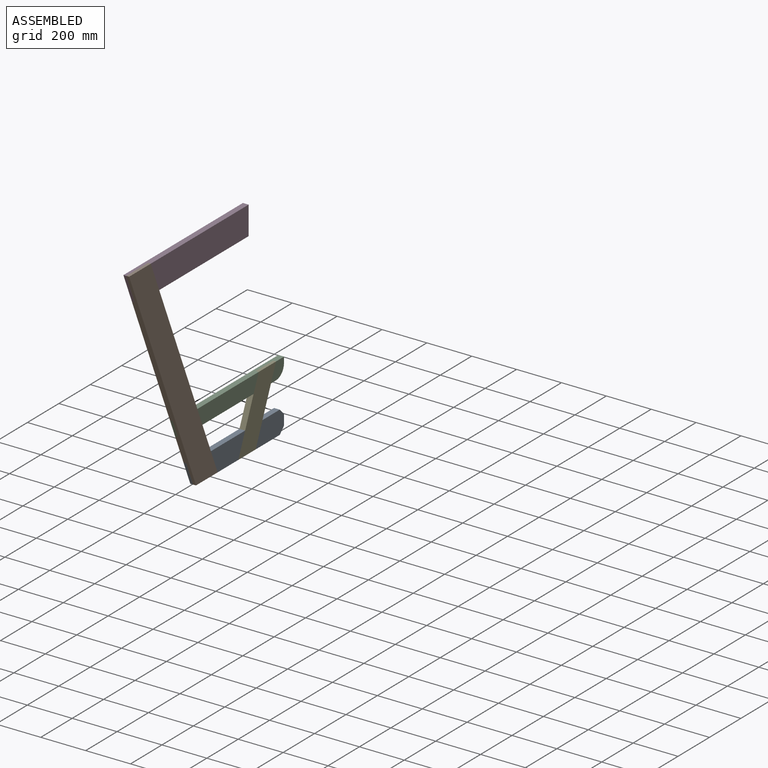
[diagram: assembled view]
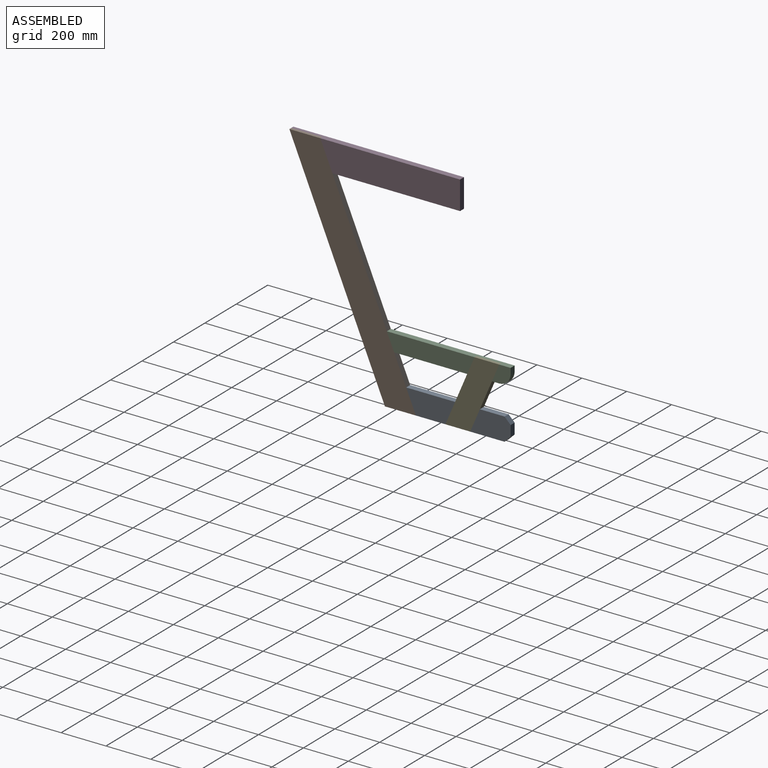
[diagram: assembled view, second angle]
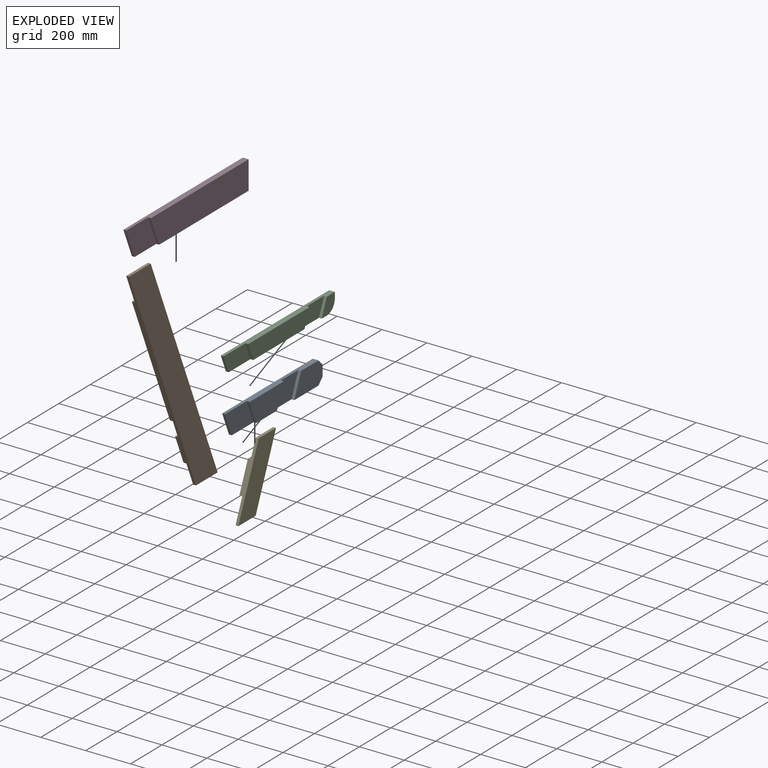
[diagram: exploded view]
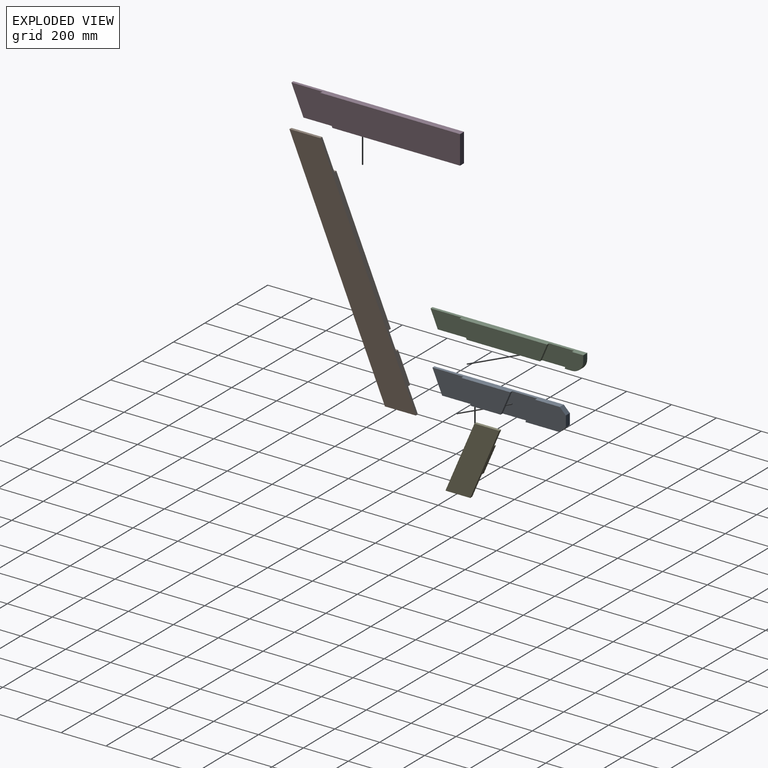
[diagram: exploded view, second angle]
ASSEMBLY  parts=5 mates=4
PART A: 14 faces, bbox 25.4x603.4x101.6 mm
  f0: plane 153.5x101.6mm, normal (1,0,0), area 11214mm2, adj f1,f3,f10,f12
  f1: plane 576.5x25.4mm, normal (0,0,1), area 11489mm2, adj f0,f2,f6,f7,f8,f9,f10,f11
  f2: plane 101.6x43.13mm, normal (0,-0.92,-0.39), area 1401.8mm2, adj f1,f3,f7,f8
  f3: plane 533.37x25.4mm, normal (0,0,-1), area 10393.6mm2, adj f0,f2,f4,f7,f8,f9,f10,f11
  f4: plane 26.94x26.94mm, normal (0,0.71,-0.71), area 967.7mm2, adj f3,f5,f8,f13
  f5: plane 47.72x25.4mm, normal (0,1,0), area 1212mm2, adj f4,f6,f8,f13
  f6: plane 26.94x26.94mm, normal (0,0.71,0.71), area 967.7mm2, adj f1,f5,f8,f13
  f7: plane 181.09x101.6mm, normal (1,0,0), area 14017.5mm2, adj f1,f2,f3,f9
  f8: plane 603.44x101.6mm, normal (-1,0,0), area 58392.5mm2, adj f1,f2,f3,f4,f5,f6
  f9: plane 101.6x43.13mm, normal (0,-0.92,-0.39), area 1401.8mm2, adj f1,f3,f7,f11
  f10: plane 101.6x43.13mm, normal (0,0.92,-0.39), area 1401.8mm2, adj f0,f1,f3,f11
  f11: plane 218.04x101.6mm, normal (1,0,0), area 17771.3mm2, adj f1,f3,f9,f10
  f12: plane 101.6x43.13mm, normal (0,-0.92,0.39), area 1401.8mm2, adj f0,f1,f3,f13
  f13: plane 180.18x101.6mm, normal (1,0,0), area 15389.6mm2, adj f1,f3,f4,f5,f6,f12
PART B: 14 faces, bbox 25.4x563.8x1003.3 mm
  f0: plane 170.31x76.2mm, normal (-1,0,0), area 10513.1mm2, adj f2,f4,f8,f11
  f1: plane 191.88x127mm, normal (-1,0,0), area 17521.9mm2, adj f2,f4,f5,f12
  f2: plane 1003.3x425.88mm, normal (0,-0.92,-0.39), area 23479.4mm2, adj f0,f1,f3,f5,f6,f7,f8,f9
  f3: plane 137.97x12.7mm, normal (0,0,-1), area 1752.2mm2, adj f2,f4,f6,f7
  f4: plane 1003.3x425.88mm, normal (0,0.92,0.39), area 23479.4mm2, adj f0,f1,f3,f5,f6,f7,f8,f9
  f5: plane 137.97x12.7mm, normal (0,0,1), area 1752.2mm2, adj f1,f2,f4,f6
  f6: plane 1003.3x563.84mm, normal (1,0,0), area 138423.1mm2, adj f2,f3,f4,f5
  f7: plane 181.09x101.6mm, normal (-1,0,0), area 14017.5mm2, adj f2,f3,f4,f9
  f8: plane 137.97x12.7mm, normal (0,0,1), area 1752.2mm2, adj f0,f2,f4,f10
  f9: plane 137.97x12.7mm, normal (0,0,-1), area 1752.2mm2, adj f2,f4,f7,f10
  f10: plane 191.88x127mm, normal (-1,0,0), area 17521.9mm2, adj f2,f4,f8,f9
  f11: plane 137.97x12.7mm, normal (0,0,-1), area 1752.2mm2, adj f0,f2,f4,f13
  f12: plane 137.97x12.7mm, normal (0,0,1), area 1752.2mm2, adj f1,f2,f4,f13
  f13: plane 571.5x380.56mm, normal (-1,0,0), area 78848.6mm2, adj f2,f4,f11,f12
PART C: 13 faces, bbox 25.4x689.7x76.2 mm
  f0: plane 142.72x76.2mm, normal (1,0,0), area 8410.5mm2, adj f1,f3,f8,f11
  f1: plane 689.69x25.4mm, normal (0,0,1), area 14364.2mm2, adj f0,f2,f5,f6,f7,f8,f9,f10
  f2: plane 76.2x32.35mm, normal (0,-0.92,-0.39), area 1051.3mm2, adj f1,f3,f6,f7
  f3: plane 606.54x25.4mm, normal (0,0,-1), area 12252.3mm2, adj f0,f2,f4,f6,f7,f8,f9,f10
  f4: cylinder r=50.8mm len=50.8mm, axis (-1,0,0), area 2026.8mm2, adj f3,f5,f7,f12
  f5: plane 25.4x25.4mm, normal (0,1,0), area 645.2mm2, adj f1,f4,f7,f12
  f6: plane 170.31x76.2mm, normal (1,0,0), area 10513.1mm2, adj f1,f2,f3,f9
  f7: plane 689.69x76.2mm, normal (-1,0,0), area 50768.2mm2, adj f1,f2,f3,f4,f5
  f8: plane 76.2x32.35mm, normal (0,0.92,-0.39), area 1051.3mm2, adj f0,f1,f3,f10
  f9: plane 76.2x32.35mm, normal (0,-0.92,-0.39), area 1051.3mm2, adj f1,f3,f6,f10
  f10: plane 390.55x76.2mm, normal (1,0,0), area 27295mm2, adj f1,f3,f8,f9
  f11: plane 76.2x32.35mm, normal (0,-0.92,0.39), area 1051.3mm2, adj f0,f1,f3,f12
  f12: plane 83.15x76.2mm, normal (1,0,0), area 4549.5mm2, adj f1,f3,f4,f5,f11
PART D: 8 faces, bbox 25.4x760.7x127 mm
  f0: plane 191.88x127mm, normal (1,0,0), area 17521.9mm2, adj f1,f3,f4,f6
  f1: plane 706.81x25.4mm, normal (0,0,-1), area 16200.8mm2, adj f0,f2,f4,f5,f6,f7
  f2: plane 127x25.4mm, normal (0,1,0), area 3225.8mm2, adj f1,f3,f5,f7
  f3: plane 760.72x25.4mm, normal (0,0,1), area 17570mm2, adj f0,f2,f4,f5,f6,f7
  f4: plane 127x53.91mm, normal (0,-0.92,-0.39), area 1752.2mm2, adj f0,f1,f3,f5
  f5: plane 760.72x127mm, normal (-1,0,0), area 93187.9mm2, adj f1,f2,f3,f4
  f6: plane 127x53.91mm, normal (0,-0.92,-0.39), area 1752.2mm2, adj f0,f1,f3,f7
  f7: plane 622.75x127mm, normal (1,0,0), area 75666mm2, adj f1,f2,f3,f6
PART E: 10 faces, bbox 25.4x239.8x304.8 mm
  f0: plane 142.72x76.2mm, normal (-1,0,0), area 8410.5mm2, adj f1,f2,f3,f7
  f1: plane 304.8x129.38mm, normal (0,0.92,-0.39), area 5957.4mm2, adj f0,f2,f4,f5,f6,f7,f8,f9
  f2: plane 110.37x12.7mm, normal (0,0,1), area 1401.8mm2, adj f0,f1,f3,f5
  f3: plane 304.8x129.38mm, normal (0,-0.92,0.39), area 5957.4mm2, adj f0,f2,f4,f5,f6,f7,f8,f9
  f4: plane 110.37x12.7mm, normal (0,0,-1), area 1401.8mm2, adj f1,f3,f5,f6
  f5: plane 304.8x239.75mm, normal (1,0,0), area 33642.1mm2, adj f1,f2,f3,f4
  f6: plane 153.5x101.6mm, normal (-1,0,0), area 11214mm2, adj f1,f3,f4,f8
  f7: plane 110.37x12.7mm, normal (0,0,1), area 1401.8mm2, adj f0,f1,f3,f9
  f8: plane 110.37x12.7mm, normal (0,0,-1), area 1401.8mm2, adj f1,f3,f6,f9
  f9: plane 164.28x127mm, normal (-1,0,0), area 14017.5mm2, adj f1,f3,f7,f8
PLACE A t=(-333.09,-105.19,128.28)mm
PLACE B t=(-333.09,-105.19,128.28)mm
PLACE C t=(-333.09,-105.19,128.28)mm
PLACE D t=(-333.09,-105.19,128.28)mm
PLACE E t=(-333.09,-105.19,128.28)mm
MATE fastened E.f4 <-> A.f3  axis (0,0,-1) through (-320.39,152.51,26.68)mm
MATE fastened C.f2 <-> B.f2  axis (0,-0.92,-0.39) through (-320.39,-285.64,293.38)mm
MATE fastened B.f2 <-> A.f2  axis (0,-0.92,-0.39) through (-320.39,-194,77.48)mm
MATE fastened D.f3 <-> B.f5  axis (0,0,1) through (-320.39,-529.33,1029.98)mm
